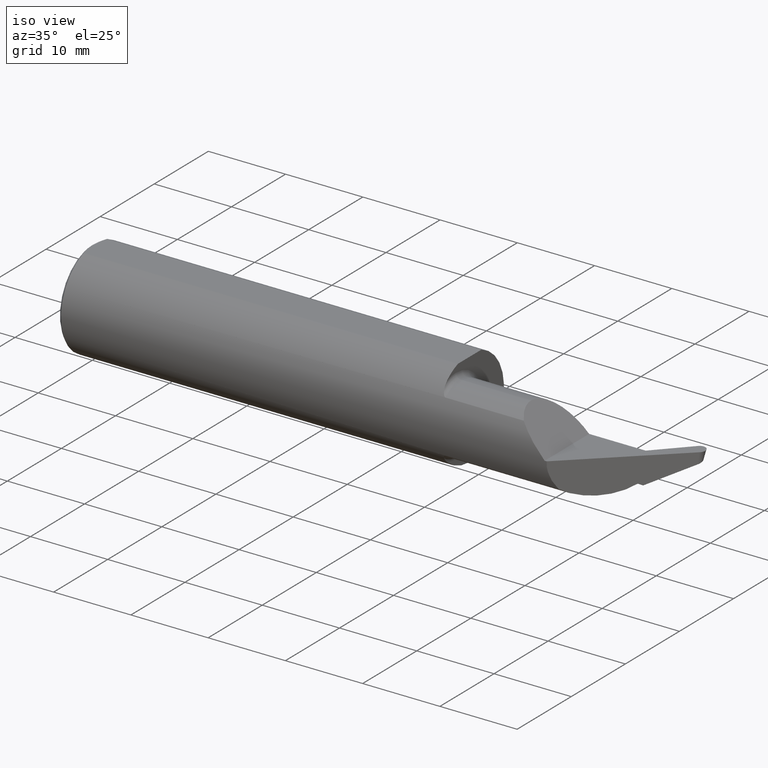
[diagram: clean part render]
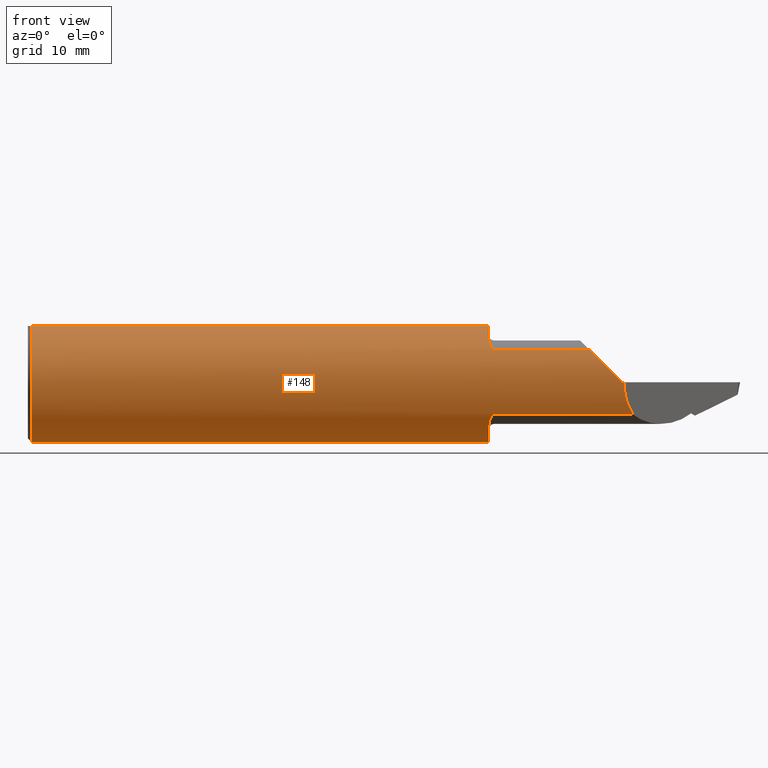
[diagram: tour spotlight — one face highlighted and labeled with its STEP entity id]
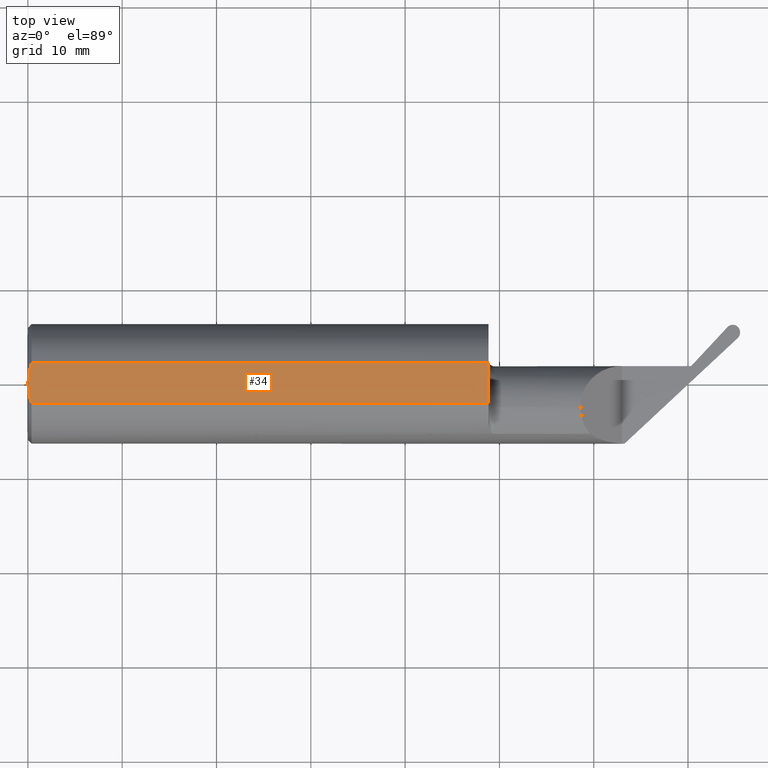
[diagram: tour spotlight — one face highlighted and labeled with its STEP entity id]
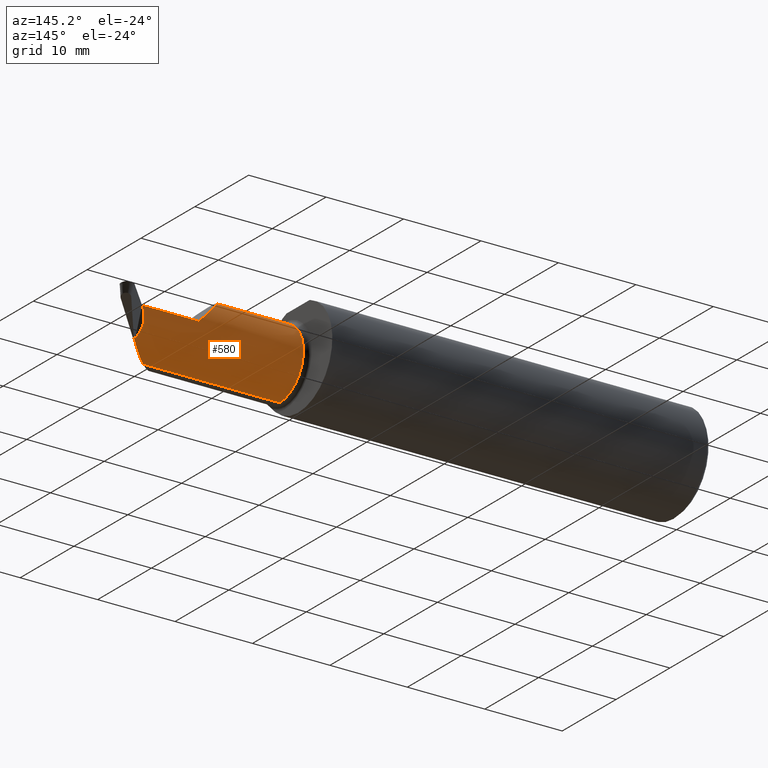
[diagram: tour spotlight — one face highlighted and labeled with its STEP entity id]
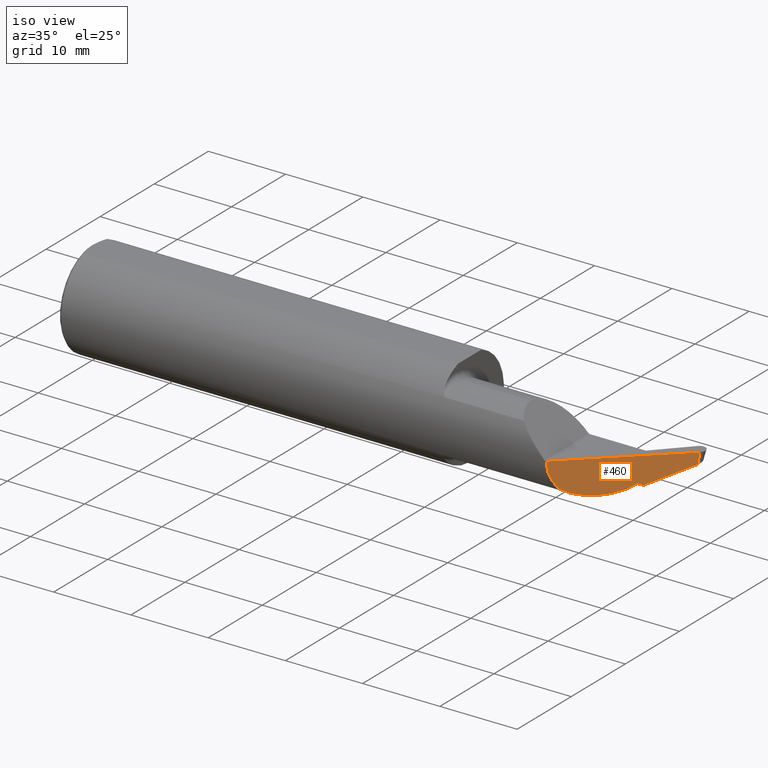
[diagram: tour spotlight — one face highlighted and labeled with its STEP entity id]
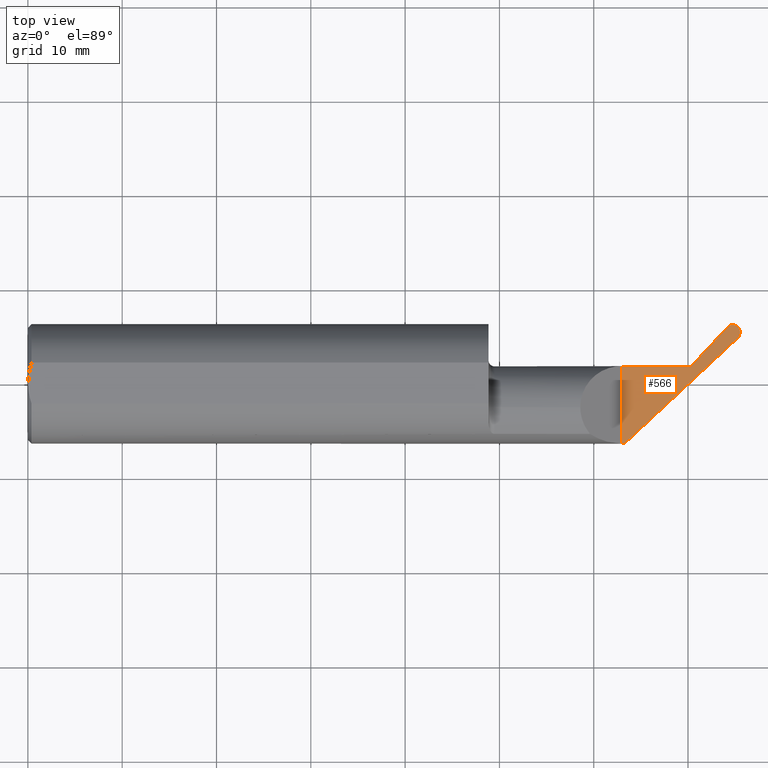
[diagram: tour spotlight — one face highlighted and labeled with its STEP entity id]
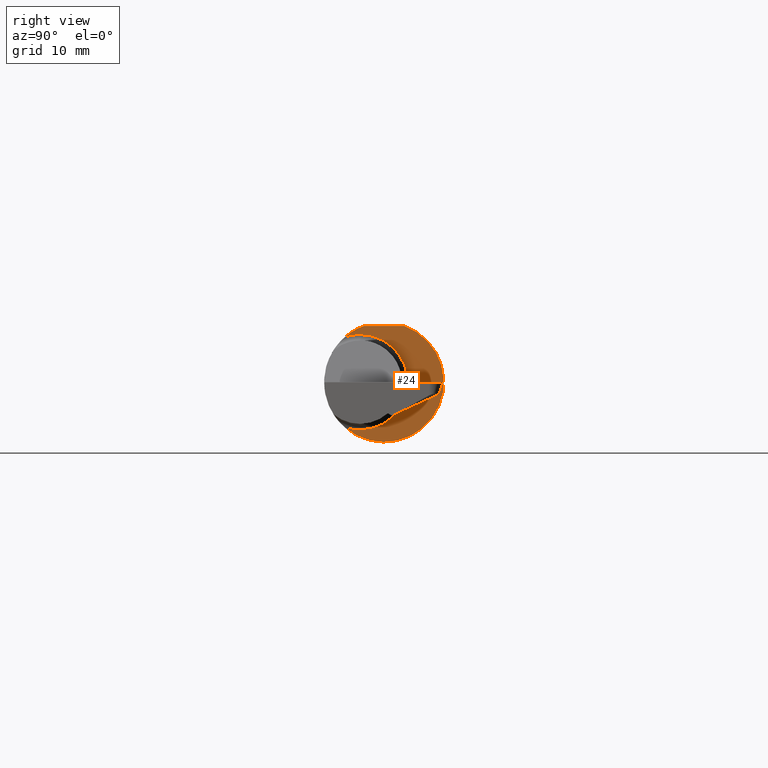
[diagram: tour spotlight — one face highlighted and labeled with its STEP entity id]
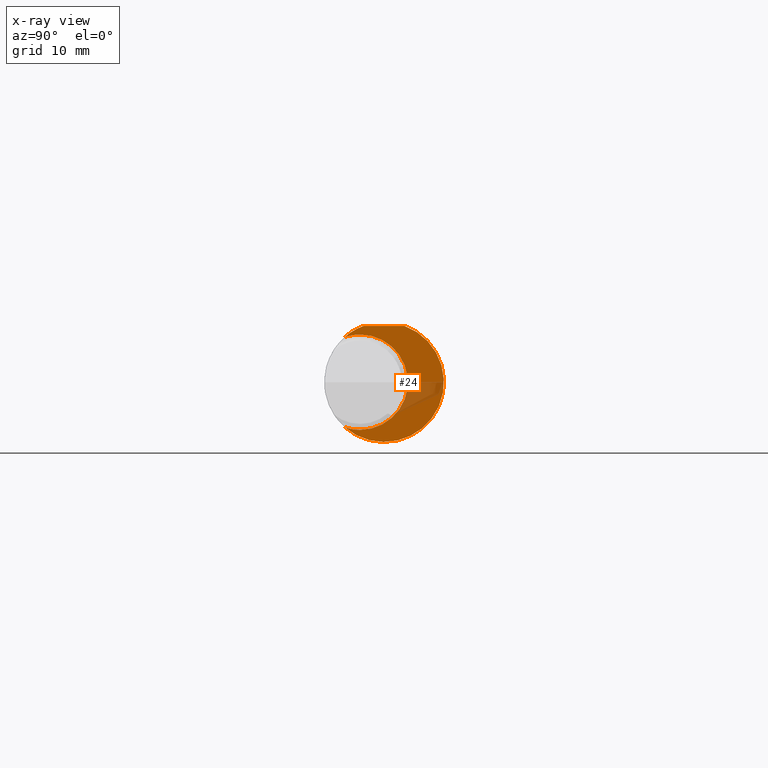
[diagram: x-ray of the same camera — body ghosted, this tour face saturated]
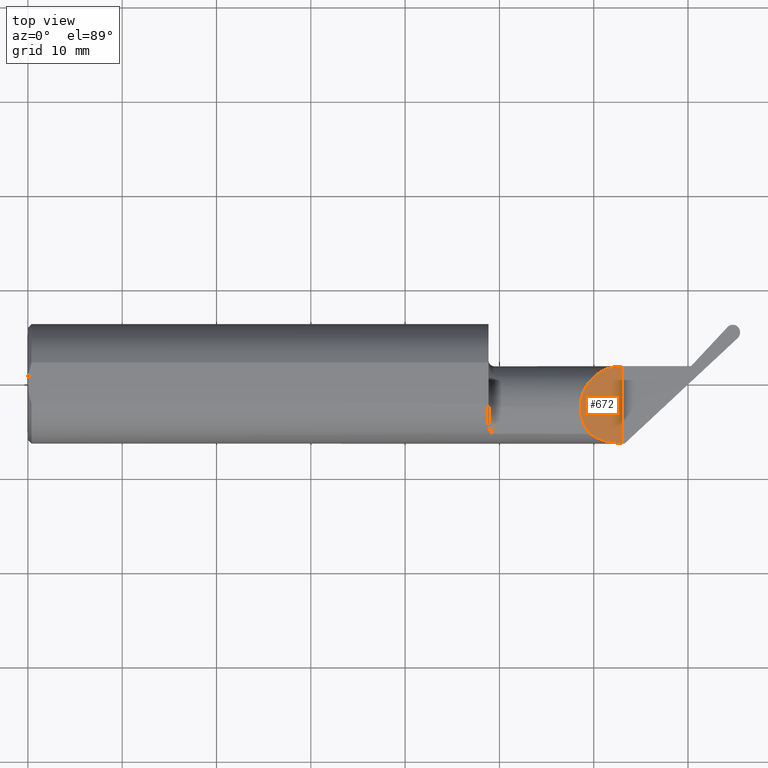
[diagram: tour spotlight — one face highlighted and labeled with its STEP entity id]
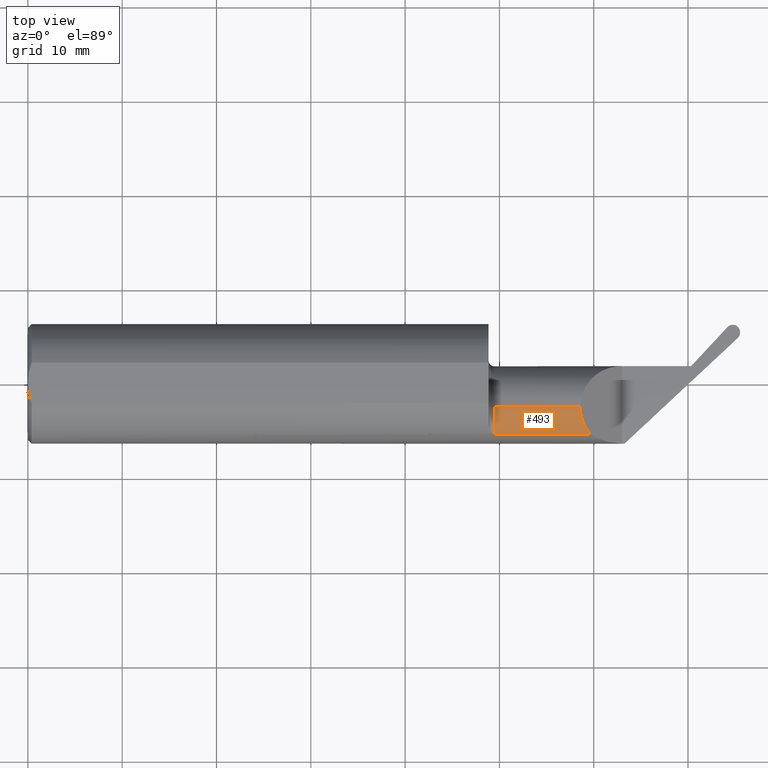
[diagram: tour spotlight — one face highlighted and labeled with its STEP entity id]
A machine part: a face-by-face anatomy tour. The part has 20 B-rep faces; the first image is the clean iso view, then the 8 largest visible faces are spotlighted one at a time (largest first), each with its STEP entity span.

Face 1 — front view, entity #148. In plain terms, the highlighted cylindrical surface (partial cylindrical patch) has radius 6.3462 mm, axis along (-1, -0, -0).
Definition (entity closure, byte-faithful):
#1 = AXIS2_PLACEMENT_3D ( 'NONE', #637, #571, #766 ) ;
#13 = DIRECTION ( 'NONE',  ( 1.000000000000000000, -0.000000000000000000, -0.000000000000000000 ) ) ;
#22 = CARTESIAN_POINT ( 'NONE',  ( 1.944666560440263758, -0.2105968497256111849, 0.1344424988095964946 ) ) ;
#23 = CARTESIAN_POINT ( 'NONE',  ( 2.487763352469697598, -0.2498500000000000443, -0.04776250763339755928 ) ) ;
#26 = AXIS2_PLACEMENT_3D ( 'NONE', #485, #222, #795 ) ;
#29 = DIRECTION ( 'NONE',  ( 1.000000000000000000, 0.000000000000000000, 0.000000000000000000 ) ) ;
#31 = ORIENTED_EDGE ( 'NONE', *, *, #350, .F. ) ;
#37 = DIRECTION ( 'NONE',  ( -1.000000000000000000, -0.000000000000000000, -0.000000000000000000 ) ) ;
#40 = CARTESIAN_POINT ( 'NONE',  ( 2.432237492366603249, -0.2498499999999999888, 0.04776250763339776745 ) ) ;
#42 = ORIENTED_EDGE ( 'NONE', *, *, #220, .F. ) ;
#43 = CARTESIAN_POINT ( 'NONE',  ( 2.480000000000000426, -0.2498499999999999888, -5.510728592200697415E-17 ) ) ;
#48 = EDGE_CURVE ( 'NONE', #305, #483, #503, .T. ) ;
#52 = VERTEX_POINT ( 'NONE', #83 ) ;
#70 = VERTEX_POINT ( 'NONE', #312 ) ;
#82 = DIRECTION ( 'NONE',  ( 0.000000000000000000, 0.000000000000000000, -1.000000000000000000 ) ) ;
#83 = CARTESIAN_POINT ( 'NONE',  ( 1.923000000000000265, -0.08526722699841958464, 0.2348499999999999477 ) ) ;
#85 = CARTESIAN_POINT ( 'NONE',  ( 3.000000000000000444, -0.2498499999999999333, -5.510728592200695567E-17 ) ) ;
#93 = CIRCLE ( 'NONE', #26, 0.2498499999999999888 ) ;
#94 = DIRECTION ( 'NONE',  ( 1.000000000000000000, 0.000000000000000000, 0.000000000000000000 ) ) ;
#96 = CIRCLE ( 'NONE', #200, 0.2498499999999999888 ) ;
#100 = ORIENTED_EDGE ( 'NONE', *, *, #645, .T. ) ;
#101 = CARTESIAN_POINT ( 'NONE',  ( 2.346054777255357937, -0.2109115923885826471, 0.1339452227446442378 ) ) ;
#105 = VECTOR ( 'NONE', #739, 39.37007874015748143 ) ;
#120 = VECTOR ( 'NONE', #155, 39.37007874015748143 ) ;
#126 = FACE_OUTER_BOUND ( 'NONE', #172, .T. ) ;
#145 = CARTESIAN_POINT ( 'NONE',  ( 1.937292829746335432, -0.2068995363356189443, 0.1400856398677443326 ) ) ;
#148 = ADVANCED_FACE ( 'NONE', ( #126 ), #378, .T. ) ;
#150 = CARTESIAN_POINT ( 'NONE',  ( 1.924856958242081584, -0.1832683170044287491, 0.1699454654953807820 ) ) ;
#154 = CARTESIAN_POINT ( 'NONE',  ( 1.948000000000000176, -0.2109115923885828414, -0.1339452227446441546 ) ) ;
#155 = DIRECTION ( 'NONE',  ( -1.000000000000000000, -0.000000000000000000, -0.000000000000000000 ) ) ;
#156 = CARTESIAN_POINT ( 'NONE',  ( 2.525106817358469868, -0.2109115923885827859, -0.1339452227446440713 ) ) ;
#163 = CARTESIAN_POINT ( 'NONE',  ( 1.923000000000000043, -0.1743076965831586722, -0.1795024430660134840 ) ) ;
#166 = CARTESIAN_POINT ( 'NONE',  ( 2.386373634735572402, -0.2365171946451294638, 0.09362636526442918994 ) ) ;
#167 = CARTESIAN_POINT ( 'NONE',  ( 1.923000000000000265, -0.1642165498247367128, -0.1883028073706277949 ) ) ;
#169 = CARTESIAN_POINT ( 'NONE',  ( 2.346054777255357937, -0.2109115923885826471, 0.1339452227446442378 ) ) ;
#172 = EDGE_LOOP ( 'NONE', ( #498, #676, #187, #608, #757, #426, #42, #557, #246, #100, #751, #250, #31 ) ) ;
#174 = DIRECTION ( 'NONE',  ( 0.000000000000000000, 0.000000000000000000, -1.000000000000000000 ) ) ;
#184 = CIRCLE ( 'NONE', #720, 0.2498499999999999888 ) ;
#187 = ORIENTED_EDGE ( 'NONE', *, *, #577, .T. ) ;
#200 = AXIS2_PLACEMENT_3D ( 'NONE', #594, #13, #529 ) ;
#214 = CARTESIAN_POINT ( 'NONE',  ( 1.931171543247812039, -0.1999759995858462480, 0.1499037593488199704 ) ) ;
#217 = CARTESIAN_POINT ( 'NONE',  ( 1.923369308096891217, -0.1740236709404001658, 0.1794003879942982493 ) ) ;
#219 = CARTESIAN_POINT ( 'NONE',  ( 1.937241547894475113, -0.2068583287092629897, -0.1401468808397461907 ) ) ;
#220 = EDGE_CURVE ( 'NONE', #52, #434, #184, .T. ) ;
#222 = DIRECTION ( 'NONE',  ( 1.000000000000000000, -0.000000000000000000, -0.000000000000000000 ) ) ;
#229 = VERTEX_POINT ( 'NONE', #659 ) ;
#235 = LINE ( 'NONE', #420, #366 ) ;
#246 = ORIENTED_EDGE ( 'NONE', *, *, #736, .T. ) ;
#250 = ORIENTED_EDGE ( 'NONE', *, *, #429, .F. ) ;
#260 = LINE ( 'NONE', #85, #120 ) ;
#279 = LINE ( 'NONE', #488, #105 ) ;
#280 = CARTESIAN_POINT ( 'NONE',  ( 1.944640240609051940, -0.2105909676090304827, -0.1344517602273910262 ) ) ;
#305 = VERTEX_POINT ( 'NONE', #156 ) ;
#312 = CARTESIAN_POINT ( 'NONE',  ( 1.948000000000000176, -0.2109115923885828414, -0.1339452227446441546 ) ) ;
#314 = EDGE_CURVE ( 'NONE', #434, #747, #501, .T. ) ;
#337 = CARTESIAN_POINT ( 'NONE',  ( 1.946283494997618213, -0.2109115923885824806, -0.1339452227446445154 ) ) ;
#342 = CARTESIAN_POINT ( 'NONE',  ( 1.925978594482057771, -0.1877222700471115058, 0.1650084968907562233 ) ) ;
#348 = CARTESIAN_POINT ( 'NONE',  ( 0.01500000000000188856, 0.08526722699841957076, 0.2348499999999999477 ) ) ;
#349 = CARTESIAN_POINT ( 'NONE',  ( 1.923000000000000265, 0.000000000000000000, 0.000000000000000000 ) ) ;
#350 = EDGE_CURVE ( 'NONE', #70, #515, #380, .T. ) ;
#366 = VECTOR ( 'NONE', #539, 39.37007874015748143 ) ;
#369 = VECTOR ( 'NONE', #37, 39.37007874015748143 ) ;
#378 = CYLINDRICAL_SURFACE ( 'NONE', #1, 0.2498499999999999888 ) ;
#380 = B_SPLINE_CURVE_WITH_KNOTS ( 'NONE', 3,
 ( #154, #337, #280, #540, #788, #219, #711, #674, #486, #489, #163, #167 ),
 .UNSPECIFIED., .F., .F.,
 ( 4, 2, 2, 2, 2, 4 ),
 ( 1.963928090037295910E-07, 0.0001286476382168832760, 0.0002570988836247628615, 0.0005140013744405208399, 0.001027806356072036688, 0.002055416319335072722 ),
 .UNSPECIFIED. ) ;
#397 = CARTESIAN_POINT ( 'NONE',  ( 1.940579013400958397, -0.2089922484211629850, 0.1369264698045240813 ) ) ;
#399 = CARTESIAN_POINT ( 'NONE',  ( 2.525106817358469868, -0.2109115923885827859, -0.1339452227446440713 ) ) ;
#402 = CARTESIAN_POINT ( 'NONE',  ( 1.923000000000000265, 0.000000000000000000, 0.000000000000000000 ) ) ;
#405 = CARTESIAN_POINT ( 'NONE',  ( 2.480000000000000426, -0.2498499999999999888, -5.510728592200697415E-17 ) ) ;
#406 = CARTESIAN_POINT ( 'NONE',  ( 1.948000000000000176, -0.2109115923885828692, 0.1339452227446441268 ) ) ;
#420 = CARTESIAN_POINT ( 'NONE',  ( 3.000000000000000444, -0.08526722699841955688, 0.2348499999999999477 ) ) ;
#426 = ORIENTED_EDGE ( 'NONE', *, *, #314, .F. ) ;
#429 = EDGE_CURVE ( 'NONE', #515, #487, #587, .T. ) ;
#434 = VERTEX_POINT ( 'NONE', #791 ) ;
#442 = EDGE_CURVE ( 'NONE', #305, #70, #610, .T. ) ;
#464 = CARTESIAN_POINT ( 'NONE',  ( 1.929161608761568836, -0.1960654850943037708, 0.1550025169877014275 ) ) ;
#480 = CARTESIAN_POINT ( 'NONE',  ( 1.948000000000000176, -0.2109115923885828692, 0.1339452227446441268 ) ) ;
#483 = VERTEX_POINT ( 'NONE', #682 ) ;
#485 = CARTESIAN_POINT ( 'NONE',  ( 0.01500000000000188856, 0.000000000000000000, 0.000000000000000000 ) ) ;
#486 = CARTESIAN_POINT ( 'NONE',  ( 1.929143744967448670, -0.1960236850867101144, -0.1550539425161184537 ) ) ;
#487 = VERTEX_POINT ( 'NONE', #737 ) ;
#488 = CARTESIAN_POINT ( 'NONE',  ( 2.358209556428159548, -0.2109115923885827859, 0.1339452227446440713 ) ) ;
#489 = CARTESIAN_POINT ( 'NONE',  ( 1.924399331548896530, -0.1835726712742159761, -0.1699824922758519929 ) ) ;
#492 = LINE ( 'NONE', #732, #819 ) ;
#498 = ORIENTED_EDGE ( 'NONE', *, *, #442, .F. ) ;
#501 = B_SPLINE_CURVE_WITH_KNOTS ( 'NONE', 3,
 ( #530, #591, #217, #150, #342, #464, #214, #782, #145, #397, #662, #22, #653, #406 ),
 .UNSPECIFIED., .F., .F.,
 ( 4, 2, 2, 2, 2, 2, 4 ),
 ( 0.0004288698157892824976, 0.0009336780968993055969, 0.001438486378009328805, 0.001943294659119353205, 0.002195698799674365188, 0.002321900869951878336, 0.002448102940229391483 ),
 .UNSPECIFIED. ) ;
#503 =( BOUNDED_CURVE ( )  B_SPLINE_CURVE ( 3, ( #399, #656, #23, #651 ),
 .UNSPECIFIED., .F., .T. ) 
 B_SPLINE_CURVE_WITH_KNOTS ( ( 4, 4 ),
 ( 5.765083885558835775, 6.330897197100739504 ),
 .UNSPECIFIED. ) 
 CURVE ( )  GEOMETRIC_REPRESENTATION_ITEM ( )  RATIONAL_B_SPLINE_CURVE ( ( 1.000000000000000000, 0.9734987392630289893, 0.9734987392630289893, 1.000000000000000000 ) ) 
 REPRESENTATION_ITEM ( '' )  );
#515 = VERTEX_POINT ( 'NONE', #815 ) ;
#529 = DIRECTION ( 'NONE',  ( 0.000000000000000000, 0.000000000000000000, -1.000000000000000000 ) ) ;
#530 = CARTESIAN_POINT ( 'NONE',  ( 1.923000000000000265, -0.1642165498247367128, 0.1883028073706277949 ) ) ;
#537 =( BOUNDED_CURVE ( )  B_SPLINE_CURVE ( 3, ( #43, #40, #166, #101 ),
 .UNSPECIFIED., .F., .T. ) 
 B_SPLINE_CURVE_WITH_KNOTS ( ( 4, 4 ),
 ( 4.712388980384689674, 5.278202291926595180 ),
 .UNSPECIFIED. ) 
 CURVE ( )  GEOMETRIC_REPRESENTATION_ITEM ( )  RATIONAL_B_SPLINE_CURVE ( ( 1.000000000000000000, 0.9734987392630287673, 0.9734987392630287673, 1.000000000000000000 ) ) 
 REPRESENTATION_ITEM ( '' )  );
#539 = DIRECTION ( 'NONE',  ( -1.000000000000000000, -0.000000000000000000, -0.000000000000000000 ) ) ;
#540 = CARTESIAN_POINT ( 'NONE',  ( 1.941784743460166718, -0.2096175062667577915, -0.1359644531973607517 ) ) ;
#543 = DIRECTION ( 'NONE',  ( 1.000000000000000000, 0.000000000000000000, 0.000000000000000000 ) ) ;
#557 = ORIENTED_EDGE ( 'NONE', *, *, #786, .T. ) ;
#571 = DIRECTION ( 'NONE',  ( -1.000000000000000000, -0.000000000000000000, -0.000000000000000000 ) ) ;
#576 = VERTEX_POINT ( 'NONE', #405 ) ;
#577 = EDGE_CURVE ( 'NONE', #483, #576, #260, .T. ) ;
#587 = CIRCLE ( 'NONE', #793, 0.2498499999999999888 ) ;
#591 = CARTESIAN_POINT ( 'NONE',  ( 1.923000000000000043, -0.1692143377402354487, 0.1839442983303267443 ) ) ;
#594 = CARTESIAN_POINT ( 'NONE',  ( 0.01500000000000188856, 0.000000000000000000, 0.000000000000000000 ) ) ;
#608 = ORIENTED_EDGE ( 'NONE', *, *, #746, .T. ) ;
#610 = LINE ( 'NONE', #614, #369 ) ;
#614 = CARTESIAN_POINT ( 'NONE',  ( 2.358209556428159548, -0.2109115923885827859, -0.1339452227446440713 ) ) ;
#637 = CARTESIAN_POINT ( 'NONE',  ( 3.000000000000000444, 0.000000000000000000, 0.000000000000000000 ) ) ;
#645 = EDGE_CURVE ( 'NONE', #680, #776, #96, .T. ) ;
#651 = CARTESIAN_POINT ( 'NONE',  ( 2.490208964683869208, -0.2498499999999997667, 4.538431086354518150E-17 ) ) ;
#653 = CARTESIAN_POINT ( 'NONE',  ( 1.946296348002434229, -0.2109115923885823973, 0.1339452227446446542 ) ) ;
#656 = CARTESIAN_POINT ( 'NONE',  ( 2.499712641245364075, -0.2365171946451296026, -0.09362636526442892626 ) ) ;
#659 = CARTESIAN_POINT ( 'NONE',  ( 0.01500000000000187815, -0.08526722699841957076, 0.2348499999999999477 ) ) ;
#662 = CARTESIAN_POINT ( 'NONE',  ( 1.941816232719195456, -0.2096312696626561889, 0.1359431843828250164 ) ) ;
#674 = CARTESIAN_POINT ( 'NONE',  ( 1.931165546287361590, -0.1999563293643365769, -0.1499285236170132818 ) ) ;
#676 = ORIENTED_EDGE ( 'NONE', *, *, #48, .T. ) ;
#680 = VERTEX_POINT ( 'NONE', #684 ) ;
#682 = CARTESIAN_POINT ( 'NONE',  ( 2.490208964683869208, -0.2498499999999997667, 4.538431086354518150E-17 ) ) ;
#684 = CARTESIAN_POINT ( 'NONE',  ( 0.01500000000000188856, 0.000000000000000000, -0.2498499999999999888 ) ) ;
#711 = CARTESIAN_POINT ( 'NONE',  ( 1.935535956346825071, -0.2051861511868710020, -0.1425927214055039693 ) ) ;
#720 = AXIS2_PLACEMENT_3D ( 'NONE', #402, #94, #82 ) ;
#732 = CARTESIAN_POINT ( 'NONE',  ( 3.000000000000000444, 0.08526722699841955688, 0.2348499999999999477 ) ) ;
#736 = EDGE_CURVE ( 'NONE', #229, #680, #93, .T. ) ;
#737 = CARTESIAN_POINT ( 'NONE',  ( 1.923000000000000265, 0.08526722699841957076, 0.2348499999999999477 ) ) ;
#739 = DIRECTION ( 'NONE',  ( 1.000000000000000000, 0.000000000000000000, 0.000000000000000000 ) ) ;
#746 = EDGE_CURVE ( 'NONE', #576, #813, #537, .T. ) ;
#747 = VERTEX_POINT ( 'NONE', #480 ) ;
#751 = ORIENTED_EDGE ( 'NONE', *, *, #759, .T. ) ;
#757 = ORIENTED_EDGE ( 'NONE', *, *, #812, .F. ) ;
#759 = EDGE_CURVE ( 'NONE', #776, #487, #492, .T. ) ;
#766 = DIRECTION ( 'NONE',  ( 0.000000000000000000, 0.000000000000000000, 1.000000000000000000 ) ) ;
#776 = VERTEX_POINT ( 'NONE', #348 ) ;
#782 = CARTESIAN_POINT ( 'NONE',  ( 1.935582689968706305, -0.2052357213566619876, 0.1425217524573965111 ) ) ;
#786 = EDGE_CURVE ( 'NONE', #52, #229, #235, .T. ) ;
#788 = CARTESIAN_POINT ( 'NONE',  ( 1.940537473186053186, -0.2089699405038897284, -0.1369606145290524213 ) ) ;
#791 = CARTESIAN_POINT ( 'NONE',  ( 1.923000000000000265, -0.1642165498247367128, 0.1883028073706277949 ) ) ;
#793 = AXIS2_PLACEMENT_3D ( 'NONE', #349, #543, #174 ) ;
#795 = DIRECTION ( 'NONE',  ( 0.000000000000000000, 0.000000000000000000, -1.000000000000000000 ) ) ;
#812 = EDGE_CURVE ( 'NONE', #747, #813, #279, .T. ) ;
#813 = VERTEX_POINT ( 'NONE', #169 ) ;
#815 = CARTESIAN_POINT ( 'NONE',  ( 1.923000000000000265, -0.1642165498247367128, -0.1883028073706277949 ) ) ;
#819 = VECTOR ( 'NONE', #29, 39.37007874015748143 ) ;

Face 2 — top view, entity #34. In plain terms, the highlighted planar face has unit normal (-0, 0, -1).
Definition (entity closure, byte-faithful):
#4 = ORIENTED_EDGE ( 'NONE', *, *, #818, .T. ) ;
#29 = DIRECTION ( 'NONE',  ( 1.000000000000000000, 0.000000000000000000, 0.000000000000000000 ) ) ;
#34 = ADVANCED_FACE ( 'NONE', ( #141 ), #465, .F. ) ;
#52 = VERTEX_POINT ( 'NONE', #83 ) ;
#58 = CARTESIAN_POINT ( 'NONE',  ( 0.006561672718762606021, -0.05761982577936749367, 0.2348499999999999754 ) ) ;
#80 = ORIENTED_EDGE ( 'NONE', *, *, #786, .F. ) ;
#83 = CARTESIAN_POINT ( 'NONE',  ( 1.923000000000000265, -0.08526722699841958464, 0.2348499999999999477 ) ) ;
#107 = CARTESIAN_POINT ( 'NONE',  ( 4.760433543769110433E-16, -0.007307070001631061316, 0.2348499999999999199 ) ) ;
#118 = AXIS2_PLACEMENT_3D ( 'NONE', #146, #394, #773 ) ;
#141 = FACE_OUTER_BOUND ( 'NONE', #716, .T. ) ;
#146 = CARTESIAN_POINT ( 'NONE',  ( 0.000000000000000000, 0.1499999999999999944, 0.2348499999999999477 ) ) ;
#158 = CARTESIAN_POINT ( 'NONE',  ( 0.01500000000000188856, 0.08526722699841957076, 0.2348499999999999477 ) ) ;
#159 = VECTOR ( 'NONE', #297, 39.37007874015748143 ) ;
#164 = B_SPLINE_CURVE_WITH_KNOTS ( 'NONE', 3,
 ( #423, #107, #355, #617, #820, #58, #306, #176 ),
 .UNSPECIFIED., .F., .F.,
 ( 4, 2, 2, 4 ),
 ( 0.007188111787249049436, 0.007736101870951915191, 0.008284091954654780945, 0.009380072122060512455 ),
 .UNSPECIFIED. ) ;
#176 = CARTESIAN_POINT ( 'NONE',  ( 0.01500000000000187815, -0.08526722699841957076, 0.2348499999999999477 ) ) ;
#190 = B_SPLINE_CURVE_WITH_KNOTS ( 'NONE', 3,
 ( #158, #223, #552, #555 ),
 .UNSPECIFIED., .F., .F.,
 ( 4, 4 ),
 ( 0.004994743219357597463, 0.007188111787249049436 ),
 .UNSPECIFIED. ) ;
#195 = ORIENTED_EDGE ( 'NONE', *, *, #759, .F. ) ;
#223 = CARTESIAN_POINT ( 'NONE',  ( 0.005550618807728169291, 0.05757865339283836648, 0.2348499999999999477 ) ) ;
#229 = VERTEX_POINT ( 'NONE', #659 ) ;
#235 = LINE ( 'NONE', #420, #366 ) ;
#297 = DIRECTION ( 'NONE',  ( 0.000000000000000000, -1.000000000000000000, 0.000000000000000000 ) ) ;
#306 = CARTESIAN_POINT ( 'NONE',  ( 0.01031857118576194089, -0.07154970585445759312, 0.2348499999999999754 ) ) ;
#345 = CARTESIAN_POINT ( 'NONE',  ( 0.000000000000000000, 0.000000000000000000, 0.2348499999999984211 ) ) ;
#348 = CARTESIAN_POINT ( 'NONE',  ( 0.01500000000000188856, 0.08526722699841957076, 0.2348499999999999477 ) ) ;
#355 = CARTESIAN_POINT ( 'NONE',  ( 0.0003471601452190532571, -0.01466881147478109673, 0.2348499999999999754 ) ) ;
#356 = CARTESIAN_POINT ( 'NONE',  ( 1.923000000000000265, 0.1499999999999999944, 0.2348499999999999477 ) ) ;
#366 = VECTOR ( 'NONE', #539, 39.37007874015748143 ) ;
#372 = EDGE_CURVE ( 'NONE', #487, #52, #607, .T. ) ;
#381 = ORIENTED_EDGE ( 'NONE', *, *, #372, .F. ) ;
#386 = VERTEX_POINT ( 'NONE', #345 ) ;
#394 = DIRECTION ( 'NONE',  ( -0.000000000000000000, 0.000000000000000000, -1.000000000000000000 ) ) ;
#407 = EDGE_CURVE ( 'NONE', #776, #386, #190, .T. ) ;
#420 = CARTESIAN_POINT ( 'NONE',  ( 3.000000000000000444, -0.08526722699841955688, 0.2348499999999999477 ) ) ;
#423 = CARTESIAN_POINT ( 'NONE',  ( 0.000000000000000000, 0.000000000000000000, 0.2348499999999984211 ) ) ;
#465 = PLANE ( 'NONE',  #118 ) ;
#487 = VERTEX_POINT ( 'NONE', #737 ) ;
#492 = LINE ( 'NONE', #732, #819 ) ;
#539 = DIRECTION ( 'NONE',  ( -1.000000000000000000, -0.000000000000000000, -0.000000000000000000 ) ) ;
#552 = CARTESIAN_POINT ( 'NONE',  ( 4.692700051746545243E-16, 0.02924705782386074343, 0.2348499999999999477 ) ) ;
#555 = CARTESIAN_POINT ( 'NONE',  ( 0.000000000000000000, 0.000000000000000000, 0.2348499999999984211 ) ) ;
#607 = LINE ( 'NONE', #356, #159 ) ;
#617 = CARTESIAN_POINT ( 'NONE',  ( 0.001692603960146767421, -0.02915258784316884094, 0.2348499999999999477 ) ) ;
#659 = CARTESIAN_POINT ( 'NONE',  ( 0.01500000000000187815, -0.08526722699841957076, 0.2348499999999999477 ) ) ;
#716 = EDGE_LOOP ( 'NONE', ( #381, #195, #802, #4, #80 ) ) ;
#732 = CARTESIAN_POINT ( 'NONE',  ( 3.000000000000000444, 0.08526722699841955688, 0.2348499999999999477 ) ) ;
#737 = CARTESIAN_POINT ( 'NONE',  ( 1.923000000000000265, 0.08526722699841957076, 0.2348499999999999477 ) ) ;
#759 = EDGE_CURVE ( 'NONE', #776, #487, #492, .T. ) ;
#773 = DIRECTION ( 'NONE',  ( -1.000000000000000000, 0.000000000000000000, 0.000000000000000000 ) ) ;
#776 = VERTEX_POINT ( 'NONE', #348 ) ;
#786 = EDGE_CURVE ( 'NONE', #52, #229, #235, .T. ) ;
#802 = ORIENTED_EDGE ( 'NONE', *, *, #407, .T. ) ;
#818 = EDGE_CURVE ( 'NONE', #386, #229, #164, .T. ) ;
#819 = VECTOR ( 'NONE', #29, 39.37007874015748143 ) ;
#820 = CARTESIAN_POINT ( 'NONE',  ( 0.002689315299820878476, -0.03632005764864067870, 0.2348499999999999477 ) ) ;

Face 3 — auxiliary view, entity #580. In plain terms, the highlighted cylindrical surface (partial cylindrical patch) has radius 4.4196 mm, axis along (-1, -0, -0).
Definition (entity closure, byte-faithful):
#2 = CARTESIAN_POINT ( 'NONE',  ( 2.751478675528472806, 0.04932269850193316679, -0.08977927160268989182 ) ) ;
#10 = CARTESIAN_POINT ( 'NONE',  ( 2.768419112856319586, 0.02761542476123012013, -0.1184422453791082047 ) ) ;
#17 = DIRECTION ( 'NONE',  ( 0.000000000000000000, 0.000000000000000000, 1.000000000000000000 ) ) ;
#25 = FACE_OUTER_BOUND ( 'NONE', #221, .T. ) ;
#32 = LINE ( 'NONE', #286, #718 ) ;
#45 = CARTESIAN_POINT ( 'NONE',  ( 2.306000000000003158, -0.09985000000000000819, 0.1740000000000000435 ) ) ;
#49 = CARTESIAN_POINT ( 'NONE',  ( 2.758993738773280580, 0.07310948323515102654, -0.02234505378485414015 ) ) ;
#50 = EDGE_CURVE ( 'NONE', #309, #124, #742, .T. ) ;
#59 = CARTESIAN_POINT ( 'NONE',  ( 2.759505836988604077, 0.02821845109425849887, -0.1183330138671340043 ) ) ;
#69 = DIRECTION ( 'NONE',  ( 0.000000000000000000, 0.000000000000000000, 1.000000000000000000 ) ) ;
#117 = ORIENTED_EDGE ( 'NONE', *, *, #714, .F. ) ;
#121 = CARTESIAN_POINT ( 'NONE',  ( 2.764144533880795063, 0.02000971208806607421, -0.1261334587576356525 ) ) ;
#122 = CARTESIAN_POINT ( 'NONE',  ( 1.948000000000000176, -0.09984999999999999432, -0.1740000000000001545 ) ) ;
#124 = VERTEX_POINT ( 'NONE', #122 ) ;
#129 = CARTESIAN_POINT ( 'NONE',  ( 2.750471965009137598, 0.05521386511995243079, -0.07917076052381598339 ) ) ;
#137 = EDGE_CURVE ( 'NONE', #144, #419, #327, .T. ) ;
#144 = VERTEX_POINT ( 'NONE', #10 ) ;
#160 = ORIENTED_EDGE ( 'NONE', *, *, #50, .F. ) ;
#173 = CARTESIAN_POINT ( 'NONE',  ( 1.923000000000000265, -0.09984999999999999432, -0.1740000000000000435 ) ) ;
#201 = CARTESIAN_POINT ( 'NONE',  ( 2.765672377942582028, 0.02262425438727416749, -0.1236489610651841375 ) ) ;
#212 = CYLINDRICAL_SURFACE ( 'NONE', #224, 0.1740000000000000435 ) ;
#216 = CARTESIAN_POINT ( 'NONE',  ( 2.767097696724142519, 0.02516030885774150905, -0.1210843971761442067 ) ) ;
#221 = EDGE_LOOP ( 'NONE', ( #422, #634, #160, #117, #518, #638, #289, #431, #361 ) ) ;
#224 = AXIS2_PLACEMENT_3D ( 'NONE', #328, #408, #781 ) ;
#228 = CARTESIAN_POINT ( 'NONE',  ( 2.378073159852920337, 0.07415000000000004921, 0.1019268401470814489 ) ) ;
#231 = DIRECTION ( 'NONE',  ( -1.000000000000000000, -0.000000000000000000, -0.000000000000000000 ) ) ;
#238 = VECTOR ( 'NONE', #534, 39.37007874015748143 ) ;
#244 = CARTESIAN_POINT ( 'NONE',  ( 2.750324424188840933, 0.05790952544216176889, -0.07365018080836756298 ) ) ;
#251 = AXIS2_PLACEMENT_3D ( 'NONE', #320, #647, #69 ) ;
#272 = CARTESIAN_POINT ( 'NONE',  ( 2.764144533880795063, 0.02000971208806607421, -0.1261334587576356525 ) ) ;
#278 = CARTESIAN_POINT ( 'NONE',  ( 1.923000000000000265, 0.07414999999999999369, -5.510728592200695567E-17 ) ) ;
#281 = VERTEX_POINT ( 'NONE', #715 ) ;
#282 = CARTESIAN_POINT ( 'NONE',  ( 2.768419112856319586, 0.01579291558687999364, -0.1300104460209476342 ) ) ;
#286 = CARTESIAN_POINT ( 'NONE',  ( 1.923000000000000265, -0.09985000000000000819, 0.1740000000000000435 ) ) ;
#289 = ORIENTED_EDGE ( 'NONE', *, *, #507, .T. ) ;
#294 = CARTESIAN_POINT ( 'NONE',  ( 2.480000000000000426, 0.07415000000000000757, -5.510728592200697415E-17 ) ) ;
#303 = EDGE_CURVE ( 'NONE', #738, #281, #775, .T. ) ;
#309 = VERTEX_POINT ( 'NONE', #779 ) ;
#318 = VERTEX_POINT ( 'NONE', #603 ) ;
#320 = CARTESIAN_POINT ( 'NONE',  ( 2.768419112856319586, -0.09985000000000000819, 0.000000000000000000 ) ) ;
#327 = CIRCLE ( 'NONE', #251, 0.1739999999999999880 ) ;
#328 = CARTESIAN_POINT ( 'NONE',  ( 1.923000000000000265, -0.09985000000000000819, 0.000000000000000000 ) ) ;
#360 = CARTESIAN_POINT ( 'NONE',  ( 2.768419112856318698, 0.07415000000000042391, 2.185478394931410575E-15 ) ) ;
#361 = ORIENTED_EDGE ( 'NONE', *, *, #137, .T. ) ;
#404 = B_SPLINE_CURVE_WITH_KNOTS ( 'NONE', 3,
 ( #360, #621, #49, #560, #806, #506, #500, #244, #129, #2, #749, #452, #59, #121 ),
 .UNSPECIFIED., .F., .F.,
 ( 4, 2, 2, 2, 2, 2, 4 ),
 ( 5.022654433302922073E-17, 0.0009210645519937476697, 0.001381596827990601989, 0.001842129103987456308, 0.002302661379984310194, 0.002763193655981164946, 0.003684258207974874452 ),
 .UNSPECIFIED. ) ;
#408 = DIRECTION ( 'NONE',  ( -1.000000000000000000, -0.000000000000000000, -0.000000000000000000 ) ) ;
#415 = CARTESIAN_POINT ( 'NONE',  ( 2.688396025911343745, -0.05672940141464750258, -0.1740000000000000435 ) ) ;
#419 = VERTEX_POINT ( 'NONE', #796 ) ;
#422 = ORIENTED_EDGE ( 'NONE', *, *, #679, .F. ) ;
#431 = ORIENTED_EDGE ( 'NONE', *, *, #532, .T. ) ;
#451 =( BOUNDED_CURVE ( )  B_SPLINE_CURVE ( 3, ( #609, #415, #669, #282 ),
 .UNSPECIFIED., .F., .T. ) 
 B_SPLINE_CURVE_WITH_KNOTS ( ( 4, 4 ),
 ( 1.523084436873744174, 2.250062143900349199 ),
 .UNSPECIFIED. ) 
 CURVE ( )  GEOMETRIC_REPRESENTATION_ITEM ( )  RATIONAL_B_SPLINE_CURVE ( ( 1.000000000000000000, 0.9564413980442015850, 0.9564413980442015850, 1.000000000000000000 ) ) 
 REPRESENTATION_ITEM ( '' )  );
#452 = CARTESIAN_POINT ( 'NONE',  ( 2.755839914353064302, 0.03594711890399699544, -0.1094341283368343437 ) ) ;
#455 = CARTESIAN_POINT ( 'NONE',  ( 1.948000000000000176, -0.09985000000000000819, 0.000000000000000000 ) ) ;
#468 = VECTOR ( 'NONE', #231, 39.37007874015748143 ) ;
#470 = AXIS2_PLACEMENT_3D ( 'NONE', #455, #535, #17 ) ;
#472 = EDGE_CURVE ( 'NONE', #789, #738, #754, .T. ) ;
#475 = CARTESIAN_POINT ( 'NONE',  ( 2.768419112856319586, 0.02761542476123012013, -0.1184422453791082047 ) ) ;
#500 = CARTESIAN_POINT ( 'NONE',  ( 2.750741318301563876, 0.06263298279817050562, -0.06254356323276391572 ) ) ;
#506 = CARTESIAN_POINT ( 'NONE',  ( 2.751299745249246698, 0.06468878021623507280, -0.05690967836275999392 ) ) ;
#507 = EDGE_CURVE ( 'NONE', #281, #702, #404, .T. ) ;
#518 = ORIENTED_EDGE ( 'NONE', *, *, #472, .T. ) ;
#532 = EDGE_CURVE ( 'NONE', #702, #144, #589, .T. ) ;
#534 = DIRECTION ( 'NONE',  ( 1.000000000000000000, 0.000000000000000000, 0.000000000000000000 ) ) ;
#535 = DIRECTION ( 'NONE',  ( -1.000000000000000000, -0.000000000000000000, -0.000000000000000000 ) ) ;
#554 = DIRECTION ( 'NONE',  ( -1.000000000000000000, -0.000000000000000000, -0.000000000000000000 ) ) ;
#560 = CARTESIAN_POINT ( 'NONE',  ( 2.754349051126845360, 0.06967497622605640928, -0.03964660771061801620 ) ) ;
#580 = ADVANCED_FACE ( 'NONE', ( #25 ), #212, .T. ) ;
#589 =( BOUNDED_CURVE ( )  B_SPLINE_CURVE ( 3, ( #272, #201, #216, #475 ),
 .UNSPECIFIED., .F., .T. ) 
 B_SPLINE_CURVE_WITH_KNOTS ( ( 4, 4 ),
 ( 2.705056901956569781, 2.767232025981813504 ),
 .UNSPECIFIED. ) 
 CURVE ( )  GEOMETRIC_REPRESENTATION_ITEM ( )  RATIONAL_B_SPLINE_CURVE ( ( 1.000000000000000000, 0.9996778804396326823, 0.9996778804396326823, 1.000000000000000000 ) ) 
 REPRESENTATION_ITEM ( '' )  );
#602 = CARTESIAN_POINT ( 'NONE',  ( 2.764144533880795063, 0.02000971208806607421, -0.1261334587576356525 ) ) ;
#603 = CARTESIAN_POINT ( 'NONE',  ( 2.642154845230877402, -0.09984999999999999432, -0.1740000000000000435 ) ) ;
#609 = CARTESIAN_POINT ( 'NONE',  ( 2.642154845230877402, -0.09984999999999999432, -0.1740000000000000435 ) ) ;
#621 = CARTESIAN_POINT ( 'NONE',  ( 2.763236998465099514, 0.07415000000000000757, -0.01106816904816583340 ) ) ;
#634 = ORIENTED_EDGE ( 'NONE', *, *, #810, .T. ) ;
#638 = ORIENTED_EDGE ( 'NONE', *, *, #303, .T. ) ;
#647 = DIRECTION ( 'NONE',  ( -1.000000000000000000, -0.000000000000000000, -0.000000000000000000 ) ) ;
#669 = CARTESIAN_POINT ( 'NONE',  ( 2.732400906183721112, -0.01642621231410781174, -0.1586690192523363963 ) ) ;
#673 = CARTESIAN_POINT ( 'NONE',  ( 2.306000000000003158, -0.09985000000000000819, 0.1740000000000000435 ) ) ;
#679 = EDGE_CURVE ( 'NONE', #318, #419, #451, .T. ) ;
#685 = CARTESIAN_POINT ( 'NONE',  ( 2.306000000000002270, 0.002076840147081477142, 0.1740000000000000435 ) ) ;
#702 = VERTEX_POINT ( 'NONE', #602 ) ;
#714 = EDGE_CURVE ( 'NONE', #789, #309, #32, .T. ) ;
#715 = CARTESIAN_POINT ( 'NONE',  ( 2.768419112856318698, 0.07415000000000042391, 2.185478394931410575E-15 ) ) ;
#718 = VECTOR ( 'NONE', #554, 39.37007874015748143 ) ;
#735 = CARTESIAN_POINT ( 'NONE',  ( 2.480000000000000426, 0.07415000000000000757, -5.510728592200697415E-17 ) ) ;
#738 = VERTEX_POINT ( 'NONE', #735 ) ;
#742 = CIRCLE ( 'NONE', #470, 0.1740000000000001545 ) ;
#749 = CARTESIAN_POINT ( 'NONE',  ( 2.752328110128409833, 0.04614295590629224203, -0.09485372060499849822 ) ) ;
#754 =( BOUNDED_CURVE ( )  B_SPLINE_CURVE ( 3, ( #45, #685, #228, #294 ),
 .UNSPECIFIED., .F., .T. ) 
 B_SPLINE_CURVE_WITH_KNOTS ( ( 4, 4 ),
 ( 0.000000000000000000, 1.570796326794896780 ),
 .UNSPECIFIED. ) 
 CURVE ( )  GEOMETRIC_REPRESENTATION_ITEM ( )  RATIONAL_B_SPLINE_CURVE ( ( 1.000000000000000000, 0.8047378541243649375, 0.8047378541243649375, 1.000000000000000000 ) ) 
 REPRESENTATION_ITEM ( '' )  );
#775 = LINE ( 'NONE', #278, #238 ) ;
#779 = CARTESIAN_POINT ( 'NONE',  ( 1.948000000000000176, -0.09985000000000000819, 0.1740000000000001545 ) ) ;
#781 = DIRECTION ( 'NONE',  ( 0.000000000000000000, 0.000000000000000000, 1.000000000000000000 ) ) ;
#789 = VERTEX_POINT ( 'NONE', #673 ) ;
#796 = CARTESIAN_POINT ( 'NONE',  ( 2.768419112856319586, 0.01579291558687999364, -0.1300104460209476342 ) ) ;
#798 = LINE ( 'NONE', #173, #468 ) ;
#806 = CARTESIAN_POINT ( 'NONE',  ( 2.753096148258490583, 0.06820596704990397607, -0.04548531219328799668 ) ) ;
#810 = EDGE_CURVE ( 'NONE', #318, #124, #798, .T. ) ;

Face 4 — iso view, entity #460. In plain terms, the highlighted planar face has unit normal (-0.6816, 0.7309, 0.0349).
Definition (entity closure, byte-faithful):
#18 = DIRECTION ( 'NONE',  ( -0.6954206866754736316, -0.6321757989175356141, -0.3416779592054307590 ) ) ;
#23 = CARTESIAN_POINT ( 'NONE',  ( 2.487763352469697598, -0.2498500000000000443, -0.04776250763339755928 ) ) ;
#30 = CARTESIAN_POINT ( 'NONE',  ( 2.960334798754022945, 0.1894423975373079327, -0.01870156880024754706 ) ) ;
#48 = EDGE_CURVE ( 'NONE', #305, #483, #503, .T. ) ;
#62 = VERTEX_POINT ( 'NONE', #627 ) ;
#74 = EDGE_CURVE ( 'NONE', #419, #565, #663, .T. ) ;
#86 = B_SPLINE_CURVE_WITH_KNOTS ( 'NONE', 3,
 ( #538, #87, #30, #650 ),
 .UNSPECIFIED., .F., .F.,
 ( 4, 4 ),
 ( 0.000000000000000000, 1.000000000000000000 ),
 .UNSPECIFIED. ) ;
#87 = CARTESIAN_POINT ( 'NONE',  ( 2.957761594274301409, 0.1879358104240662075, -0.03740313760011752114 ) ) ;
#95 = VECTOR ( 'NONE', #261, 39.37007874015748854 ) ;
#156 = CARTESIAN_POINT ( 'NONE',  ( 2.525106817358469868, -0.2109115923885827859, -0.1339452227446440713 ) ) ;
#170 = FACE_OUTER_BOUND ( 'NONE', #513, .T. ) ;
#171 = EDGE_CURVE ( 'NONE', #62, #483, #453, .T. ) ;
#178 = ORIENTED_EDGE ( 'NONE', *, *, #48, .F. ) ;
#203 = ORIENTED_EDGE ( 'NONE', *, *, #679, .T. ) ;
#204 = CARTESIAN_POINT ( 'NONE',  ( 2.785170687796944211, 0.03187374538234199334, -0.1396387492611713965 ) ) ;
#218 = CARTESIAN_POINT ( 'NONE',  ( 2.642154845230877402, -0.09984999999999999432, -0.1740000000000000435 ) ) ;
#240 = ORIENTED_EDGE ( 'NONE', *, *, #171, .T. ) ;
#249 = CARTESIAN_POINT ( 'NONE',  ( 2.768419112856319586, 0.01579291558687999364, -0.1300104460209476342 ) ) ;
#254 = CARTESIAN_POINT ( 'NONE',  ( 2.773993255702161154, 0.02114554192837313218, -0.1332494012405315009 ) ) ;
#261 = DIRECTION ( 'NONE',  ( -0.7313537016191669071, -0.6819983600625022513, 0.000000000000000000 ) ) ;
#275 =( BOUNDED_CURVE ( )  B_SPLINE_CURVE ( 3, ( #542, #410, #677, #218 ),
 .UNSPECIFIED., .F., .T. ) 
 B_SPLINE_CURVE_WITH_KNOTS ( ( 4, 4 ),
 ( 0.8308160677390153959, 1.523084436873744174 ),
 .UNSPECIFIED. ) 
 CURVE ( )  GEOMETRIC_REPRESENTATION_ITEM ( )  RATIONAL_B_SPLINE_CURVE ( ( 1.000000000000000000, 0.9604608466326346461, 0.9604608466326346461, 1.000000000000000000 ) ) 
 REPRESENTATION_ITEM ( '' )  );
#282 = CARTESIAN_POINT ( 'NONE',  ( 2.768419112856319586, 0.01579291558687999364, -0.1300104460209476342 ) ) ;
#288 = DIRECTION ( 'NONE',  ( -0.7313537016191663520, -0.6819983600625026954, 0.000000000000000000 ) ) ;
#305 = VERTEX_POINT ( 'NONE', #156 ) ;
#318 = VERTEX_POINT ( 'NONE', #603 ) ;
#324 = EDGE_CURVE ( 'NONE', #687, #62, #86, .T. ) ;
#399 = CARTESIAN_POINT ( 'NONE',  ( 2.525106817358469868, -0.2109115923885827859, -0.1339452227446440713 ) ) ;
#410 = CARTESIAN_POINT ( 'NONE',  ( 2.557592675252737369, -0.1793692571805422242, -0.1600987644990813641 ) ) ;
#413 = PLANE ( 'NONE',  #481 ) ;
#415 = CARTESIAN_POINT ( 'NONE',  ( 2.688396025911343745, -0.05672940141464750258, -0.1740000000000000435 ) ) ;
#419 = VERTEX_POINT ( 'NONE', #796 ) ;
#424 = CARTESIAN_POINT ( 'NONE',  ( 3.053306783168695304, 0.2905995014134185039, -0.3215265527917257060 ) ) ;
#451 =( BOUNDED_CURVE ( )  B_SPLINE_CURVE ( 3, ( #609, #415, #669, #282 ),
 .UNSPECIFIED., .F., .T. ) 
 B_SPLINE_CURVE_WITH_KNOTS ( ( 4, 4 ),
 ( 1.523084436873744174, 2.250062143900349199 ),
 .UNSPECIFIED. ) 
 CURVE ( )  GEOMETRIC_REPRESENTATION_ITEM ( )  RATIONAL_B_SPLINE_CURVE ( ( 1.000000000000000000, 0.9564413980442015850, 0.9564413980442015850, 1.000000000000000000 ) ) 
 REPRESENTATION_ITEM ( '' )  );
#453 = LINE ( 'NONE', #707, #95 ) ;
#460 = ADVANCED_FACE ( 'NONE', ( #170 ), #413, .F. ) ;
#474 = ORIENTED_EDGE ( 'NONE', *, *, #667, .T. ) ;
#481 = AXIS2_PLACEMENT_3D ( 'NONE', #424, #733, #288 ) ;
#483 = VERTEX_POINT ( 'NONE', #682 ) ;
#503 =( BOUNDED_CURVE ( )  B_SPLINE_CURVE ( 3, ( #399, #656, #23, #651 ),
 .UNSPECIFIED., .F., .T. ) 
 B_SPLINE_CURVE_WITH_KNOTS ( ( 4, 4 ),
 ( 5.765083885558835775, 6.330897197100739504 ),
 .UNSPECIFIED. ) 
 CURVE ( )  GEOMETRIC_REPRESENTATION_ITEM ( )  RATIONAL_B_SPLINE_CURVE ( ( 1.000000000000000000, 0.9734987392630289893, 0.9734987392630289893, 1.000000000000000000 ) ) 
 REPRESENTATION_ITEM ( '' )  );
#513 = EDGE_LOOP ( 'NONE', ( #561, #619, #240, #178, #474, #203, #734 ) ) ;
#519 = LINE ( 'NONE', #774, #523 ) ;
#523 = VECTOR ( 'NONE', #18, 39.37007874015748854 ) ;
#538 = CARTESIAN_POINT ( 'NONE',  ( 2.955188389794582982, 0.1864292233108235941, -0.05610470639991949060 ) ) ;
#542 = CARTESIAN_POINT ( 'NONE',  ( 2.525106817358469868, -0.2109115923885827859, -0.1339452227446440713 ) ) ;
#561 = ORIENTED_EDGE ( 'NONE', *, *, #592, .F. ) ;
#564 = CARTESIAN_POINT ( 'NONE',  ( 2.785170687796944211, 0.03187374538234199334, -0.1396387492611713965 ) ) ;
#565 = VERTEX_POINT ( 'NONE', #204 ) ;
#592 = EDGE_CURVE ( 'NONE', #687, #565, #519, .T. ) ;
#603 = CARTESIAN_POINT ( 'NONE',  ( 2.642154845230877402, -0.09984999999999999432, -0.1740000000000000435 ) ) ;
#609 = CARTESIAN_POINT ( 'NONE',  ( 2.642154845230877402, -0.09984999999999999432, -0.1740000000000000435 ) ) ;
#619 = ORIENTED_EDGE ( 'NONE', *, *, #324, .T. ) ;
#627 = CARTESIAN_POINT ( 'NONE',  ( 2.962908003233793330, 0.1909489846505771082, 0.000000000000000000 ) ) ;
#650 = CARTESIAN_POINT ( 'NONE',  ( 2.962908003233793330, 0.1909489846505771082, 0.000000000000000000 ) ) ;
#651 = CARTESIAN_POINT ( 'NONE',  ( 2.490208964683869208, -0.2498499999999997667, 4.538431086354518150E-17 ) ) ;
#656 = CARTESIAN_POINT ( 'NONE',  ( 2.499712641245364075, -0.2365171946451296026, -0.09362636526442892626 ) ) ;
#663 = B_SPLINE_CURVE_WITH_KNOTS ( 'NONE', 3,
 ( #249, #254, #762, #564 ),
 .UNSPECIFIED., .F., .F.,
 ( 4, 4 ),
 ( 3.006448548907062336E-07, 0.0006388020145401087551 ),
 .UNSPECIFIED. ) ;
#667 = EDGE_CURVE ( 'NONE', #305, #318, #275, .T. ) ;
#669 = CARTESIAN_POINT ( 'NONE',  ( 2.732400906183721112, -0.01642621231410781174, -0.1586690192523363963 ) ) ;
#677 = CARTESIAN_POINT ( 'NONE',  ( 2.598214850979724933, -0.1408247075240018908, -0.1740000000000000713 ) ) ;
#679 = EDGE_CURVE ( 'NONE', #318, #419, #451, .T. ) ;
#682 = CARTESIAN_POINT ( 'NONE',  ( 2.490208964683869208, -0.2498499999999997667, 4.538431086354518150E-17 ) ) ;
#687 = VERTEX_POINT ( 'NONE', #790 ) ;
#707 = CARTESIAN_POINT ( 'NONE',  ( 2.490208964683869208, -0.2498499999999999888, 0.000000000000000000 ) ) ;
#733 = DIRECTION ( 'NONE',  ( -0.6815829050885320317, 0.7309081807046561297, 0.03489949670248779223 ) ) ;
#734 = ORIENTED_EDGE ( 'NONE', *, *, #74, .T. ) ;
#762 = CARTESIAN_POINT ( 'NONE',  ( 2.779577849226514630, 0.02650641010623627433, -0.1364568666594789259 ) ) ;
#774 = CARTESIAN_POINT ( 'NONE',  ( 2.909331534491044646, 0.1447428100464332457, -0.07863535157039218404 ) ) ;
#790 = CARTESIAN_POINT ( 'NONE',  ( 2.955188389794582982, 0.1864292233108235941, -0.05610470639991949060 ) ) ;
#796 = CARTESIAN_POINT ( 'NONE',  ( 2.768419112856319586, 0.01579291558687999364, -0.1300104460209476342 ) ) ;

Face 5 — top view, entity #566. In plain terms, the highlighted planar face has unit normal (-0, 0, -1).
Definition (entity closure, byte-faithful):
#7 = CARTESIAN_POINT ( 'NONE',  ( 2.920485636251496597, 0.2372213815312202712, -5.510728592200695567E-17 ) ) ;
#9 = CARTESIAN_POINT ( 'NONE',  ( 2.480000000000000426, 0.2500000000000000000, -5.510728592200697415E-17 ) ) ;
#62 = VERTEX_POINT ( 'NONE', #627 ) ;
#73 = ORIENTED_EDGE ( 'NONE', *, *, #139, .T. ) ;
#85 = CARTESIAN_POINT ( 'NONE',  ( 3.000000000000000444, -0.2498499999999999333, -5.510728592200695567E-17 ) ) ;
#95 = VECTOR ( 'NONE', #261, 39.37007874015748854 ) ;
#98 = LINE ( 'NONE', #290, #276 ) ;
#114 = ORIENTED_EDGE ( 'NONE', *, *, #577, .F. ) ;
#120 = VECTOR ( 'NONE', #155, 39.37007874015748143 ) ;
#127 = EDGE_LOOP ( 'NONE', ( #255, #73, #510, #292, #358, #114 ) ) ;
#130 = CARTESIAN_POINT ( 'NONE',  ( 2.959328683422393524, 0.2434462109997723167, -5.510728592200696183E-17 ) ) ;
#135 = CARTESIAN_POINT ( 'NONE',  ( 2.970069962662356122, 0.2296802198213067359, -5.510728592200697415E-17 ) ) ;
#139 = EDGE_CURVE ( 'NONE', #62, #414, #633, .T. ) ;
#142 = EDGE_CURVE ( 'NONE', #576, #738, #750, .T. ) ;
#155 = DIRECTION ( 'NONE',  ( -1.000000000000000000, -0.000000000000000000, -0.000000000000000000 ) ) ;
#171 = EDGE_CURVE ( 'NONE', #62, #483, #453, .T. ) ;
#186 = CARTESIAN_POINT ( 'NONE',  ( 2.972643988176406182, 0.2240735943474627678, -5.510728592200698648E-17 ) ) ;
#197 = CARTESIAN_POINT ( 'NONE',  ( 2.973463357364606985, 0.2178119426117045565, -5.510728592200697415E-17 ) ) ;
#238 = VECTOR ( 'NONE', #534, 39.37007874015748143 ) ;
#245 = CARTESIAN_POINT ( 'NONE',  ( 2.967964022025022075, 0.2332724087456661544, -5.510728592200697415E-17 ) ) ;
#255 = ORIENTED_EDGE ( 'NONE', *, *, #171, .F. ) ;
#260 = LINE ( 'NONE', #85, #120 ) ;
#261 = DIRECTION ( 'NONE',  ( -0.7313537016191669071, -0.6819983600625022513, 0.000000000000000000 ) ) ;
#276 = VECTOR ( 'NONE', #344, 39.37007874015748143 ) ;
#278 = CARTESIAN_POINT ( 'NONE',  ( 1.923000000000000265, 0.07414999999999999369, -5.510728592200695567E-17 ) ) ;
#281 = VERTEX_POINT ( 'NONE', #715 ) ;
#283 = CARTESIAN_POINT ( 'NONE',  ( 2.920485636251496597, 0.2372213815312202712, -5.510728592200695567E-17 ) ) ;
#290 = CARTESIAN_POINT ( 'NONE',  ( 2.606161487868362325, -0.09985000000000000819, -5.510728592200695567E-17 ) ) ;
#292 = ORIENTED_EDGE ( 'NONE', *, *, #303, .F. ) ;
#303 = EDGE_CURVE ( 'NONE', #738, #281, #775, .T. ) ;
#304 = CARTESIAN_POINT ( 'NONE',  ( 2.962908003233793330, 0.1909489846505771082, 0.000000000000000000 ) ) ;
#341 = AXIS2_PLACEMENT_3D ( 'NONE', #9, #717, #395 ) ;
#344 = DIRECTION ( 'NONE',  ( 0.6819983600625073583, 0.7313537016191622442, 0.000000000000000000 ) ) ;
#358 = ORIENTED_EDGE ( 'NONE', *, *, #142, .F. ) ;
#374 = CARTESIAN_POINT ( 'NONE',  ( 2.951875433620106293, 0.2469048083345366518, -5.510728592200695567E-17 ) ) ;
#395 = DIRECTION ( 'NONE',  ( -1.000000000000000000, 0.000000000000000000, 0.000000000000000000 ) ) ;
#405 = CARTESIAN_POINT ( 'NONE',  ( 2.480000000000000426, -0.2498499999999999888, -5.510728592200697415E-17 ) ) ;
#414 = VERTEX_POINT ( 'NONE', #283 ) ;
#438 = VECTOR ( 'NONE', #696, 39.37007874015748143 ) ;
#453 = LINE ( 'NONE', #707, #95 ) ;
#462 = PLANE ( 'NONE',  #341 ) ;
#483 = VERTEX_POINT ( 'NONE', #682 ) ;
#502 = CARTESIAN_POINT ( 'NONE',  ( 2.934222026353721091, 0.2471357473275108407, -5.510728592200697415E-17 ) ) ;
#510 = ORIENTED_EDGE ( 'NONE', *, *, #701, .F. ) ;
#534 = DIRECTION ( 'NONE',  ( 1.000000000000000000, 0.000000000000000000, 0.000000000000000000 ) ) ;
#566 = ADVANCED_FACE ( 'NONE', ( #710 ), #462, .F. ) ;
#575 = CARTESIAN_POINT ( 'NONE',  ( 2.926700995108581616, 0.2438694485609095575, -5.510728592200697415E-17 ) ) ;
#576 = VERTEX_POINT ( 'NONE', #405 ) ;
#577 = EDGE_CURVE ( 'NONE', #483, #576, #260, .T. ) ;
#627 = CARTESIAN_POINT ( 'NONE',  ( 2.962908003233793330, 0.1909489846505771082, 0.000000000000000000 ) ) ;
#632 = CARTESIAN_POINT ( 'NONE',  ( 2.480000000000000426, 0.2500000000000000000, -5.510728592200697415E-17 ) ) ;
#633 = B_SPLINE_CURVE_WITH_KNOTS ( 'NONE', 3,
 ( #304, #756, #816, #197, #186, #135, #245, #700, #130, #374, #502, #575, #7 ),
 .UNSPECIFIED., .F., .F.,
 ( 4, 2, 1, 2, 2, 2, 4 ),
 ( 0.000000000000000000, 0.2499999999999900635, 0.3749999999999851230, 0.4374999999999826250, 0.4999999999999801270, 0.7499999999999900080, 1.000000000000000000 ),
 .UNSPECIFIED. ) ;
#682 = CARTESIAN_POINT ( 'NONE',  ( 2.490208964683869208, -0.2498499999999997667, 4.538431086354518150E-17 ) ) ;
#696 = DIRECTION ( 'NONE',  ( -0.000000000000000000, 1.000000000000000000, -0.000000000000000000 ) ) ;
#700 = CARTESIAN_POINT ( 'NONE',  ( 2.966759324076577720, 0.2349462667284578365, -5.510728592200697415E-17 ) ) ;
#701 = EDGE_CURVE ( 'NONE', #281, #414, #98, .T. ) ;
#707 = CARTESIAN_POINT ( 'NONE',  ( 2.490208964683869208, -0.2498499999999999888, 0.000000000000000000 ) ) ;
#710 = FACE_OUTER_BOUND ( 'NONE', #127, .T. ) ;
#715 = CARTESIAN_POINT ( 'NONE',  ( 2.768419112856318698, 0.07415000000000042391, 2.185478394931410575E-15 ) ) ;
#717 = DIRECTION ( 'NONE',  ( -0.000000000000000000, 0.000000000000000000, -1.000000000000000000 ) ) ;
#735 = CARTESIAN_POINT ( 'NONE',  ( 2.480000000000000426, 0.07415000000000000757, -5.510728592200697415E-17 ) ) ;
#738 = VERTEX_POINT ( 'NONE', #735 ) ;
#750 = LINE ( 'NONE', #632, #438 ) ;
#756 = CARTESIAN_POINT ( 'NONE',  ( 2.969321757516828253, 0.1969454155852159716, -5.510728592200697415E-17 ) ) ;
#775 = LINE ( 'NONE', #278, #238 ) ;
#816 = CARTESIAN_POINT ( 'NONE',  ( 2.972762553973212096, 0.2044152707909689670, -5.510728592200697415E-17 ) ) ;

Face 6 — right view, entity #24. An x-ray twin of the same camera follows (body ghosted, this face saturated) — the face is partly hidden behind the body. In plain terms, the highlighted planar face has unit normal (1, 0, 0).
Definition (entity closure, byte-faithful):
#3 = DIRECTION ( 'NONE',  ( -1.000000000000000000, -0.000000000000000000, -0.000000000000000000 ) ) ;
#19 = DIRECTION ( 'NONE',  ( 0.000000000000000000, 0.000000000000000000, 1.000000000000000000 ) ) ;
#24 = ADVANCED_FACE ( 'NONE', ( #712 ), #780, .T. ) ;
#52 = VERTEX_POINT ( 'NONE', #83 ) ;
#82 = DIRECTION ( 'NONE',  ( 0.000000000000000000, 0.000000000000000000, -1.000000000000000000 ) ) ;
#83 = CARTESIAN_POINT ( 'NONE',  ( 1.923000000000000265, -0.08526722699841958464, 0.2348499999999999477 ) ) ;
#94 = DIRECTION ( 'NONE',  ( 1.000000000000000000, 0.000000000000000000, 0.000000000000000000 ) ) ;
#149 = AXIS2_PLACEMENT_3D ( 'NONE', #198, #459, #721 ) ;
#151 = EDGE_CURVE ( 'NONE', #434, #300, #387, .T. ) ;
#159 = VECTOR ( 'NONE', #297, 39.37007874015748143 ) ;
#174 = DIRECTION ( 'NONE',  ( 0.000000000000000000, 0.000000000000000000, -1.000000000000000000 ) ) ;
#184 = CIRCLE ( 'NONE', #720, 0.2498499999999999888 ) ;
#198 = CARTESIAN_POINT ( 'NONE',  ( 1.923000000000000265, 0.09915000000000015468, 0.000000000000000000 ) ) ;
#220 = EDGE_CURVE ( 'NONE', #52, #434, #184, .T. ) ;
#258 = EDGE_LOOP ( 'NONE', ( #346, #396, #573, #731, #495, #469 ) ) ;
#297 = DIRECTION ( 'NONE',  ( 0.000000000000000000, -1.000000000000000000, 0.000000000000000000 ) ) ;
#300 = VERTEX_POINT ( 'NONE', #586 ) ;
#333 = CARTESIAN_POINT ( 'NONE',  ( 1.923000000000000265, -0.09985000000000000819, 0.000000000000000000 ) ) ;
#338 = EDGE_CURVE ( 'NONE', #300, #611, #601, .T. ) ;
#346 = ORIENTED_EDGE ( 'NONE', *, *, #429, .T. ) ;
#349 = CARTESIAN_POINT ( 'NONE',  ( 1.923000000000000265, 0.000000000000000000, 0.000000000000000000 ) ) ;
#356 = CARTESIAN_POINT ( 'NONE',  ( 1.923000000000000265, 0.1499999999999999944, 0.2348499999999999477 ) ) ;
#372 = EDGE_CURVE ( 'NONE', #487, #52, #607, .T. ) ;
#387 = CIRCLE ( 'NONE', #770, 0.1990000000000001767 ) ;
#396 = ORIENTED_EDGE ( 'NONE', *, *, #372, .T. ) ;
#402 = CARTESIAN_POINT ( 'NONE',  ( 1.923000000000000265, 0.000000000000000000, 0.000000000000000000 ) ) ;
#429 = EDGE_CURVE ( 'NONE', #515, #487, #587, .T. ) ;
#434 = VERTEX_POINT ( 'NONE', #791 ) ;
#437 = CARTESIAN_POINT ( 'NONE',  ( 1.923000000000000265, -0.09985000000000000819, 0.000000000000000000 ) ) ;
#459 = DIRECTION ( 'NONE',  ( 1.000000000000000000, 0.000000000000000000, 0.000000000000000000 ) ) ;
#469 = ORIENTED_EDGE ( 'NONE', *, *, #584, .T. ) ;
#471 = DIRECTION ( 'NONE',  ( 0.000000000000000000, 0.000000000000000000, 1.000000000000000000 ) ) ;
#473 = DIRECTION ( 'NONE',  ( -1.000000000000000000, -0.000000000000000000, -0.000000000000000000 ) ) ;
#487 = VERTEX_POINT ( 'NONE', #737 ) ;
#495 = ORIENTED_EDGE ( 'NONE', *, *, #338, .T. ) ;
#515 = VERTEX_POINT ( 'NONE', #815 ) ;
#517 = DIRECTION ( 'NONE',  ( 0.000000000000000000, 0.000000000000000000, 1.000000000000000000 ) ) ;
#543 = DIRECTION ( 'NONE',  ( 1.000000000000000000, 0.000000000000000000, 0.000000000000000000 ) ) ;
#573 = ORIENTED_EDGE ( 'NONE', *, *, #220, .T. ) ;
#584 = EDGE_CURVE ( 'NONE', #611, #515, #626, .T. ) ;
#586 = CARTESIAN_POINT ( 'NONE',  ( 1.923000000000000265, -0.09985000000000003595, 0.1990000000000001767 ) ) ;
#587 = CIRCLE ( 'NONE', #793, 0.2498499999999999888 ) ;
#590 = DIRECTION ( 'NONE',  ( -1.000000000000000000, -0.000000000000000000, -0.000000000000000000 ) ) ;
#601 = CIRCLE ( 'NONE', #706, 0.1990000000000001767 ) ;
#607 = LINE ( 'NONE', #356, #159 ) ;
#611 = VERTEX_POINT ( 'NONE', #769 ) ;
#626 = CIRCLE ( 'NONE', #772, 0.1990000000000001767 ) ;
#664 = CARTESIAN_POINT ( 'NONE',  ( 1.923000000000000265, -0.09985000000000000819, 0.000000000000000000 ) ) ;
#706 = AXIS2_PLACEMENT_3D ( 'NONE', #333, #473, #19 ) ;
#712 = FACE_OUTER_BOUND ( 'NONE', #258, .T. ) ;
#720 = AXIS2_PLACEMENT_3D ( 'NONE', #402, #94, #82 ) ;
#721 = DIRECTION ( 'NONE',  ( 0.000000000000000000, 0.000000000000000000, -1.000000000000000000 ) ) ;
#731 = ORIENTED_EDGE ( 'NONE', *, *, #151, .T. ) ;
#737 = CARTESIAN_POINT ( 'NONE',  ( 1.923000000000000265, 0.08526722699841957076, 0.2348499999999999477 ) ) ;
#769 = CARTESIAN_POINT ( 'NONE',  ( 1.923000000000000265, -0.09985000000000000819, -0.1990000000000001767 ) ) ;
#770 = AXIS2_PLACEMENT_3D ( 'NONE', #437, #3, #517 ) ;
#772 = AXIS2_PLACEMENT_3D ( 'NONE', #664, #590, #471 ) ;
#780 = PLANE ( 'NONE',  #149 ) ;
#791 = CARTESIAN_POINT ( 'NONE',  ( 1.923000000000000265, -0.1642165498247367128, 0.1883028073706277949 ) ) ;
#793 = AXIS2_PLACEMENT_3D ( 'NONE', #349, #543, #174 ) ;
#815 = CARTESIAN_POINT ( 'NONE',  ( 1.923000000000000265, -0.1642165498247367128, -0.1883028073706277949 ) ) ;

Face 7 — top view, entity #672. In plain terms, the highlighted planar face has unit normal (-0.7071, 0, -0.7071).
Definition (entity closure, byte-faithful):
#40 = CARTESIAN_POINT ( 'NONE',  ( 2.432237492366603249, -0.2498499999999999888, 0.04776250763339776745 ) ) ;
#43 = CARTESIAN_POINT ( 'NONE',  ( 2.480000000000000426, -0.2498499999999999888, -5.510728592200697415E-17 ) ) ;
#45 = CARTESIAN_POINT ( 'NONE',  ( 2.306000000000003158, -0.09985000000000000819, 0.1740000000000000435 ) ) ;
#79 = CARTESIAN_POINT ( 'NONE',  ( 2.306000000000002714, -0.1408247075240017798, 0.1740000000000000435 ) ) ;
#101 = CARTESIAN_POINT ( 'NONE',  ( 2.346054777255357937, -0.2109115923885826471, 0.1339452227446442378 ) ) ;
#111 = DIRECTION ( 'NONE',  ( -0.7071067811865527908, 0.000000000000000000, -0.7071067811865423547 ) ) ;
#131 = ORIENTED_EDGE ( 'NONE', *, *, #472, .F. ) ;
#142 = EDGE_CURVE ( 'NONE', #576, #738, #750, .T. ) ;
#166 = CARTESIAN_POINT ( 'NONE',  ( 2.386373634735572402, -0.2365171946451294638, 0.09362636526442918994 ) ) ;
#169 = CARTESIAN_POINT ( 'NONE',  ( 2.346054777255357937, -0.2109115923885826471, 0.1339452227446442378 ) ) ;
#192 =( BOUNDED_CURVE ( )  B_SPLINE_CURVE ( 3, ( #524, #724, #79, #713 ),
 .UNSPECIFIED., .F., .T. ) 
 B_SPLINE_CURVE_WITH_KNOTS ( ( 4, 4 ),
 ( 5.590916938044860451, 6.283185307179586232 ),
 .UNSPECIFIED. ) 
 CURVE ( )  GEOMETRIC_REPRESENTATION_ITEM ( )  RATIONAL_B_SPLINE_CURVE ( ( 1.000000000000000000, 0.9604608466326349792, 0.9604608466326349792, 1.000000000000000000 ) ) 
 REPRESENTATION_ITEM ( '' )  );
#228 = CARTESIAN_POINT ( 'NONE',  ( 2.378073159852920337, 0.07415000000000004921, 0.1019268401470814489 ) ) ;
#293 = PLANE ( 'NONE',  #792 ) ;
#294 = CARTESIAN_POINT ( 'NONE',  ( 2.480000000000000426, 0.07415000000000000757, -5.510728592200697415E-17 ) ) ;
#375 = ORIENTED_EDGE ( 'NONE', *, *, #142, .T. ) ;
#405 = CARTESIAN_POINT ( 'NONE',  ( 2.480000000000000426, -0.2498499999999999888, -5.510728592200697415E-17 ) ) ;
#438 = VECTOR ( 'NONE', #696, 39.37007874015748143 ) ;
#472 = EDGE_CURVE ( 'NONE', #789, #738, #754, .T. ) ;
#477 = CARTESIAN_POINT ( 'NONE',  ( 2.480000000000000426, -0.2498499999999999888, -5.510728592200697415E-17 ) ) ;
#504 = EDGE_LOOP ( 'NONE', ( #652, #741, #375, #131 ) ) ;
#524 = CARTESIAN_POINT ( 'NONE',  ( 2.346054777255357937, -0.2109115923885826471, 0.1339452227446442378 ) ) ;
#537 =( BOUNDED_CURVE ( )  B_SPLINE_CURVE ( 3, ( #43, #40, #166, #101 ),
 .UNSPECIFIED., .F., .T. ) 
 B_SPLINE_CURVE_WITH_KNOTS ( ( 4, 4 ),
 ( 4.712388980384689674, 5.278202291926595180 ),
 .UNSPECIFIED. ) 
 CURVE ( )  GEOMETRIC_REPRESENTATION_ITEM ( )  RATIONAL_B_SPLINE_CURVE ( ( 1.000000000000000000, 0.9734987392630287673, 0.9734987392630287673, 1.000000000000000000 ) ) 
 REPRESENTATION_ITEM ( '' )  );
#556 = EDGE_CURVE ( 'NONE', #813, #789, #192, .T. ) ;
#576 = VERTEX_POINT ( 'NONE', #405 ) ;
#632 = CARTESIAN_POINT ( 'NONE',  ( 2.480000000000000426, 0.2500000000000000000, -5.510728592200697415E-17 ) ) ;
#652 = ORIENTED_EDGE ( 'NONE', *, *, #556, .F. ) ;
#672 = ADVANCED_FACE ( 'NONE', ( #681 ), #293, .F. ) ;
#673 = CARTESIAN_POINT ( 'NONE',  ( 2.306000000000003158, -0.09985000000000000819, 0.1740000000000000435 ) ) ;
#681 = FACE_OUTER_BOUND ( 'NONE', #504, .T. ) ;
#685 = CARTESIAN_POINT ( 'NONE',  ( 2.306000000000002270, 0.002076840147081477142, 0.1740000000000000435 ) ) ;
#696 = DIRECTION ( 'NONE',  ( -0.000000000000000000, 1.000000000000000000, -0.000000000000000000 ) ) ;
#713 = CARTESIAN_POINT ( 'NONE',  ( 2.306000000000003158, -0.09985000000000000819, 0.1740000000000000435 ) ) ;
#724 = CARTESIAN_POINT ( 'NONE',  ( 2.319901235500921199, -0.1793692571805419467, 0.1600987644990814196 ) ) ;
#728 = DIRECTION ( 'NONE',  ( -0.7071067811865422437, 0.000000000000000000, 0.7071067811865526798 ) ) ;
#735 = CARTESIAN_POINT ( 'NONE',  ( 2.480000000000000426, 0.07415000000000000757, -5.510728592200697415E-17 ) ) ;
#738 = VERTEX_POINT ( 'NONE', #735 ) ;
#741 = ORIENTED_EDGE ( 'NONE', *, *, #746, .F. ) ;
#746 = EDGE_CURVE ( 'NONE', #576, #813, #537, .T. ) ;
#750 = LINE ( 'NONE', #632, #438 ) ;
#754 =( BOUNDED_CURVE ( )  B_SPLINE_CURVE ( 3, ( #45, #685, #228, #294 ),
 .UNSPECIFIED., .F., .T. ) 
 B_SPLINE_CURVE_WITH_KNOTS ( ( 4, 4 ),
 ( 0.000000000000000000, 1.570796326794896780 ),
 .UNSPECIFIED. ) 
 CURVE ( )  GEOMETRIC_REPRESENTATION_ITEM ( )  RATIONAL_B_SPLINE_CURVE ( ( 1.000000000000000000, 0.8047378541243649375, 0.8047378541243649375, 1.000000000000000000 ) ) 
 REPRESENTATION_ITEM ( '' )  );
#789 = VERTEX_POINT ( 'NONE', #673 ) ;
#792 = AXIS2_PLACEMENT_3D ( 'NONE', #477, #111, #728 ) ;
#813 = VERTEX_POINT ( 'NONE', #169 ) ;

Face 8 — top view, entity #493. In plain terms, the highlighted cylindrical surface (partial cylindrical patch) has radius 4.4196 mm, axis along (-1, -0, -0).
Definition (entity closure, byte-faithful):
#32 = LINE ( 'NONE', #286, #718 ) ;
#72 = CARTESIAN_POINT ( 'NONE',  ( 1.948000000000000176, -0.09985000000000000819, 0.000000000000000000 ) ) ;
#79 = CARTESIAN_POINT ( 'NONE',  ( 2.306000000000002714, -0.1408247075240017798, 0.1740000000000000435 ) ) ;
#105 = VECTOR ( 'NONE', #739, 39.37007874015748143 ) ;
#112 = DIRECTION ( 'NONE',  ( 0.000000000000000000, 0.000000000000000000, 1.000000000000000000 ) ) ;
#113 = EDGE_CURVE ( 'NONE', #747, #309, #803, .T. ) ;
#169 = CARTESIAN_POINT ( 'NONE',  ( 2.346054777255357937, -0.2109115923885826471, 0.1339452227446442378 ) ) ;
#192 =( BOUNDED_CURVE ( )  B_SPLINE_CURVE ( 3, ( #524, #724, #79, #713 ),
 .UNSPECIFIED., .F., .T. ) 
 B_SPLINE_CURVE_WITH_KNOTS ( ( 4, 4 ),
 ( 5.590916938044860451, 6.283185307179586232 ),
 .UNSPECIFIED. ) 
 CURVE ( )  GEOMETRIC_REPRESENTATION_ITEM ( )  RATIONAL_B_SPLINE_CURVE ( ( 1.000000000000000000, 0.9604608466326349792, 0.9604608466326349792, 1.000000000000000000 ) ) 
 REPRESENTATION_ITEM ( '' )  );
#236 = CYLINDRICAL_SURFACE ( 'NONE', #412, 0.1740000000000000435 ) ;
#257 = DIRECTION ( 'NONE',  ( 0.000000000000000000, 0.000000000000000000, 1.000000000000000000 ) ) ;
#262 = ORIENTED_EDGE ( 'NONE', *, *, #714, .T. ) ;
#279 = LINE ( 'NONE', #488, #105 ) ;
#286 = CARTESIAN_POINT ( 'NONE',  ( 1.923000000000000265, -0.09985000000000000819, 0.1740000000000000435 ) ) ;
#309 = VERTEX_POINT ( 'NONE', #779 ) ;
#354 = EDGE_LOOP ( 'NONE', ( #763, #262, #403, #761 ) ) ;
#403 = ORIENTED_EDGE ( 'NONE', *, *, #113, .F. ) ;
#412 = AXIS2_PLACEMENT_3D ( 'NONE', #743, #428, #112 ) ;
#425 = AXIS2_PLACEMENT_3D ( 'NONE', #72, #579, #257 ) ;
#428 = DIRECTION ( 'NONE',  ( -1.000000000000000000, -0.000000000000000000, -0.000000000000000000 ) ) ;
#480 = CARTESIAN_POINT ( 'NONE',  ( 1.948000000000000176, -0.2109115923885828692, 0.1339452227446441268 ) ) ;
#488 = CARTESIAN_POINT ( 'NONE',  ( 2.358209556428159548, -0.2109115923885827859, 0.1339452227446440713 ) ) ;
#493 = ADVANCED_FACE ( 'NONE', ( #801 ), #236, .T. ) ;
#524 = CARTESIAN_POINT ( 'NONE',  ( 2.346054777255357937, -0.2109115923885826471, 0.1339452227446442378 ) ) ;
#554 = DIRECTION ( 'NONE',  ( -1.000000000000000000, -0.000000000000000000, -0.000000000000000000 ) ) ;
#556 = EDGE_CURVE ( 'NONE', #813, #789, #192, .T. ) ;
#579 = DIRECTION ( 'NONE',  ( -1.000000000000000000, -0.000000000000000000, -0.000000000000000000 ) ) ;
#673 = CARTESIAN_POINT ( 'NONE',  ( 2.306000000000003158, -0.09985000000000000819, 0.1740000000000000435 ) ) ;
#713 = CARTESIAN_POINT ( 'NONE',  ( 2.306000000000003158, -0.09985000000000000819, 0.1740000000000000435 ) ) ;
#714 = EDGE_CURVE ( 'NONE', #789, #309, #32, .T. ) ;
#718 = VECTOR ( 'NONE', #554, 39.37007874015748143 ) ;
#724 = CARTESIAN_POINT ( 'NONE',  ( 2.319901235500921199, -0.1793692571805419467, 0.1600987644990814196 ) ) ;
#739 = DIRECTION ( 'NONE',  ( 1.000000000000000000, 0.000000000000000000, 0.000000000000000000 ) ) ;
#743 = CARTESIAN_POINT ( 'NONE',  ( 1.923000000000000265, -0.09985000000000000819, 0.000000000000000000 ) ) ;
#747 = VERTEX_POINT ( 'NONE', #480 ) ;
#761 = ORIENTED_EDGE ( 'NONE', *, *, #812, .T. ) ;
#763 = ORIENTED_EDGE ( 'NONE', *, *, #556, .T. ) ;
#779 = CARTESIAN_POINT ( 'NONE',  ( 1.948000000000000176, -0.09985000000000000819, 0.1740000000000001545 ) ) ;
#789 = VERTEX_POINT ( 'NONE', #673 ) ;
#801 = FACE_OUTER_BOUND ( 'NONE', #354, .T. ) ;
#803 = CIRCLE ( 'NONE', #425, 0.1740000000000001545 ) ;
#812 = EDGE_CURVE ( 'NONE', #747, #813, #279, .T. ) ;
#813 = VERTEX_POINT ( 'NONE', #169 ) ;